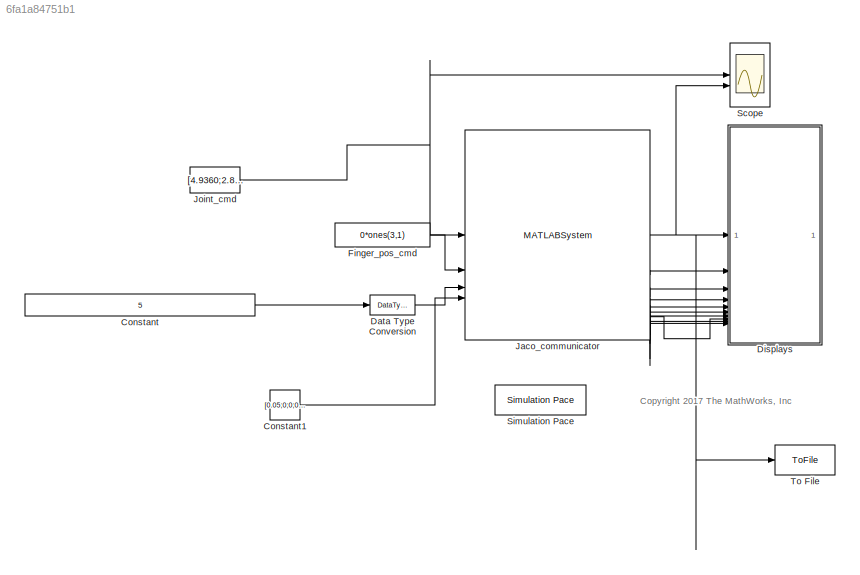
MODEL slx_6fa1a84751b1
KIND model
CONFIG AbsTol = auto
CONFIG EnableMultiTasking = off
CONFIG FixedStep = sampleTime
CONFIG InitFcn = cd(fullfile(rootLocation, 'JACO2SDK'));
CONFIG MaxStep = auto
CONFIG MinStep = auto
CONFIG PostLoadFcn = q_home = [4.806;2.924;1.004;4.204;1.445;1.323];\nsampleTime = 0.1;
CONFIG PreLoadFcn = currentPath = pwd;\nrootLocation = fileparts(currentPath);\nif ~exist('JacoComm.m', 'file')\n    addpath(fullfile(rootLocation, 'Source'));\nend
CONFIG RelTol = 1e-3
CONFIG SampleTimeConstraint = Unconstrained
CONFIG SolverName = ode3
CONFIG StartFcn = cd(currentPath);
CONFIG StartTime = 0.0
CONFIG StopTime = inf
WORKSPACE source: mxarray member
WORKSPACE sampleTime = 0.1
BLOCK [Constant] Constant
  Value = 5
BLOCK [Constant] Constant1
  Value = [0.05;0;0;0;0;0]
BLOCK [DataTypeConversion] Data Type Conversion
  OutDataTypeStr = int32
  RndMeth = Floor
  SaturateOnIntegerOverflow = off
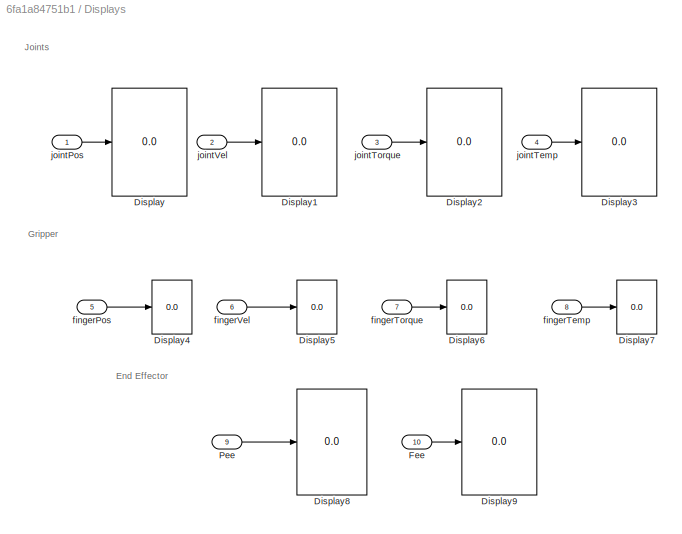
BLOCK [SubSystem] Displays
BLOCK [Display] Displays/Display
  Decimation = 1
BLOCK [Display] Displays/Display1
  Decimation = 1
BLOCK [Display] Displays/Display2
  Decimation = 1
BLOCK [Display] Displays/Display3
  Decimation = 1
BLOCK [Display] Displays/Display4
  Decimation = 1
BLOCK [Display] Displays/Display5
  Decimation = 1
BLOCK [Display] Displays/Display6
  Decimation = 1
BLOCK [Display] Displays/Display7
  Decimation = 1
BLOCK [Display] Displays/Display8
  Decimation = 1
BLOCK [Display] Displays/Display9
  Decimation = 1
BLOCK [Inport] Displays/Fee
  Port = 10
BLOCK [Inport] Displays/Pee
  Port = 9
BLOCK [Inport] Displays/fingerPos
  Port = 5
BLOCK [Inport] Displays/fingerTemp
  Port = 8
BLOCK [Inport] Displays/fingerTorque
  Port = 7
BLOCK [Inport] Displays/fingerVel
  Port = 6
BLOCK [Inport] Displays/jointPos
BLOCK [Inport] Displays/jointTemp
  Port = 4
BLOCK [Inport] Displays/jointTorque
  Port = 3
BLOCK [Inport] Displays/jointVel
  Port = 2
BLOCK [Constant] Finger_pos_cmd
  Value = 0*ones(3,1)
BLOCK [MATLABSystem] Jaco_communicator
  CalibrateFingersAtStartup = off
  ControlMode = Position
  GoToHomeAtStartup = off
  MaskDisplay = disp('JacoComm');\nport_label('output',1,'JointPos');\nport_label('output',2,'JointVel');\nport_label('output',3,'JointTorque');\nport_label('output',4,'JointTemp');\nport_label('output',5,'FingerPos');\nport_label('output',6,'FingerVel');\nport_label('output',7,'FingerTorque');\nport_label('output',8,'FingerTemp');\nport_label('output',9,'Pee');\nport_label('output',10,'Fee');\nport_label('output',11,'DOF')...<+64ch>
  MaskType = JacoComm
  SimulateUsing = Interpreted execution
  System = JacoComm
BLOCK [Constant] Joint_cmd
  SampleTime = sampleTime
  Value = [4.9360;2.8562;0.7641;-1.6595;4.4819;5.0405]
BLOCK [Scope] Scope
  Floating = off
  NumInputPorts = 2
  ScopeSpecificationString = Simulink.scopes.TimeScopeBlockCfg('CurrentConfiguration', extmgr.ConfigurationSet(extmgr.Configuration('Core','General UI',true),extmgr.Configuration('Core','Source UI',true),extmgr.Configuration('Sources','WiredSimulink',true),extmgr.Configuration('Visuals','Time Domain',true,'SerializedDisplays',{struct('MinYLimReal','-4.03289','MaxYLimReal','19.70103','YLabelReal','','MinYLimMag','0.00000','Max...<+1579ch>
BLOCK [Reference] Simulation Pace  REF=aerolibanimutils/Simulation Pace
  AttributesFormatString = %<SleepMode>\n%<SimulationPace> sec/sec
  SourceBlock = aerolibanimutils/Simulation Pace
  SourceType = Simulation Pace
BLOCK [ToFile] To File
  Filename = JntPos.mat
ANNOTATION (root): <copyright redacted>
ANNOTATION Displays: End Effector
ANNOTATION Displays: Gripper
ANNOTATION Displays: Joints
LINE Constant1:1 -> Jaco_communicator:4
LINE Constant:1 -> Data Type Conversion:1
LINE Data Type Conversion:1 -> Jaco_communicator:3
LINE Displays/Fee:1 -> Displays/Display9:1
LINE Displays/Pee:1 -> Displays/Display8:1
LINE Displays/fingerPos:1 -> Displays/Display4:1
LINE Displays/fingerTemp:1 -> Displays/Display7:1
LINE Displays/fingerTorque:1 -> Displays/Display6:1
LINE Displays/fingerVel:1 -> Displays/Display5:1
LINE Displays/jointPos:1 -> Displays/Display:1
LINE Displays/jointTemp:1 -> Displays/Display3:1
LINE Displays/jointTorque:1 -> Displays/Display2:1
LINE Displays/jointVel:1 -> Displays/Display1:1
LINE Finger_pos_cmd:1 -> Jaco_communicator:2
NET Jaco_communicator:1 -> Displays:1, Scope:2, To File:1
LINE Jaco_communicator:10 -> Displays:10
LINE Jaco_communicator:2 -> Displays:2
LINE Jaco_communicator:3 -> Displays:3
LINE Jaco_communicator:4 -> Displays:4
LINE Jaco_communicator:5 -> Displays:5
LINE Jaco_communicator:6 -> Displays:6
LINE Jaco_communicator:7 -> Displays:7
LINE Jaco_communicator:8 -> Displays:8
LINE Jaco_communicator:9 -> Displays:9
NET Joint_cmd:1 -> Jaco_communicator:1, Scope:1
note: NET lines group one-source signal fan-out (src -> all destinations, sorted); 1:1 wires keep LINE
